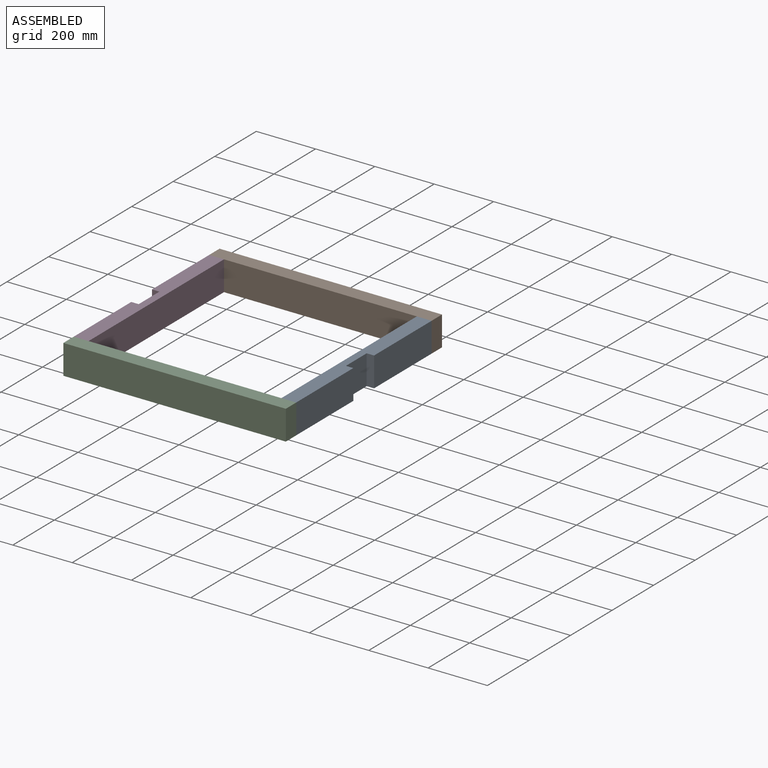
[diagram: assembled view]
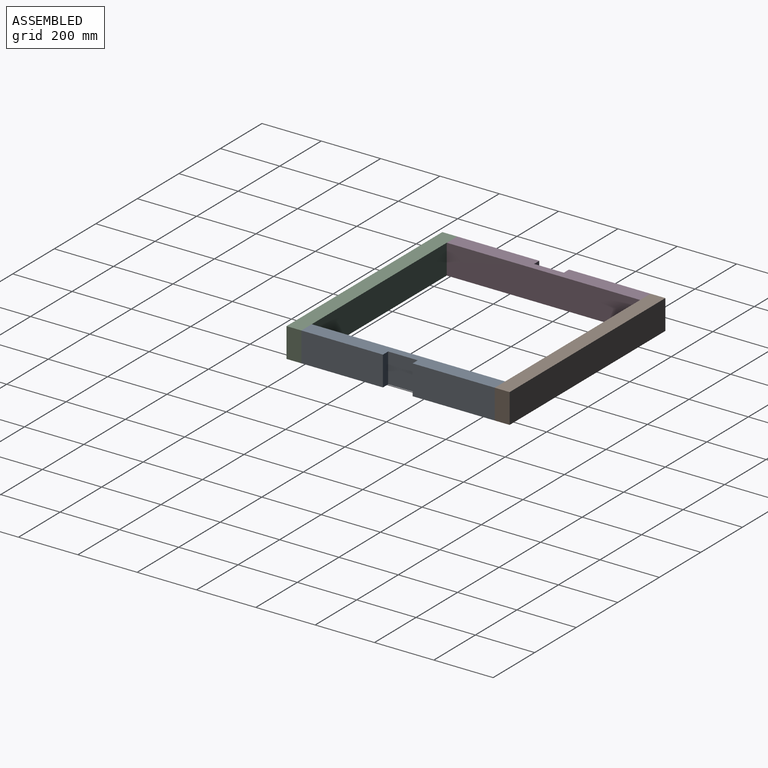
[diagram: assembled view, second angle]
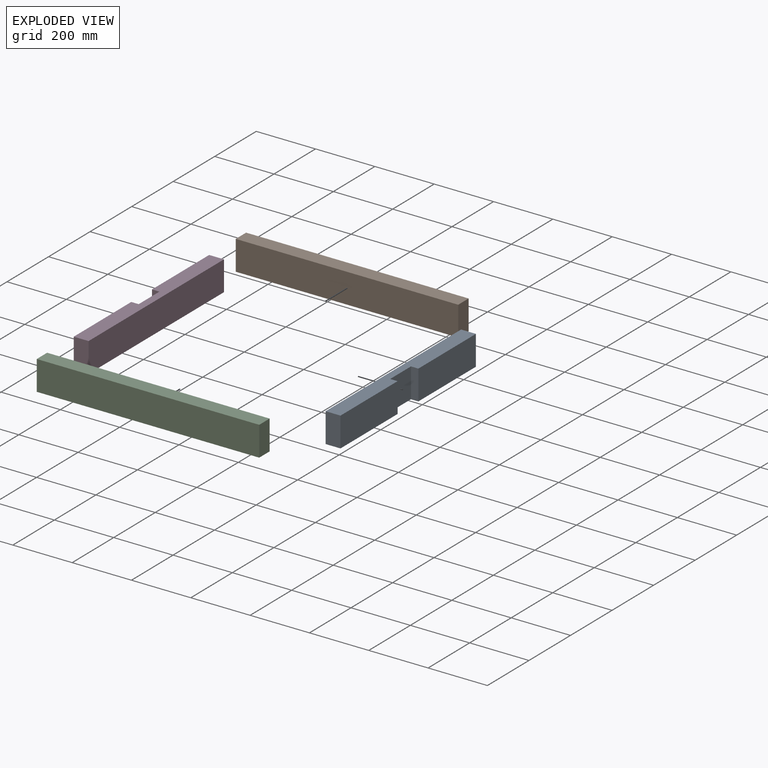
[diagram: exploded view]
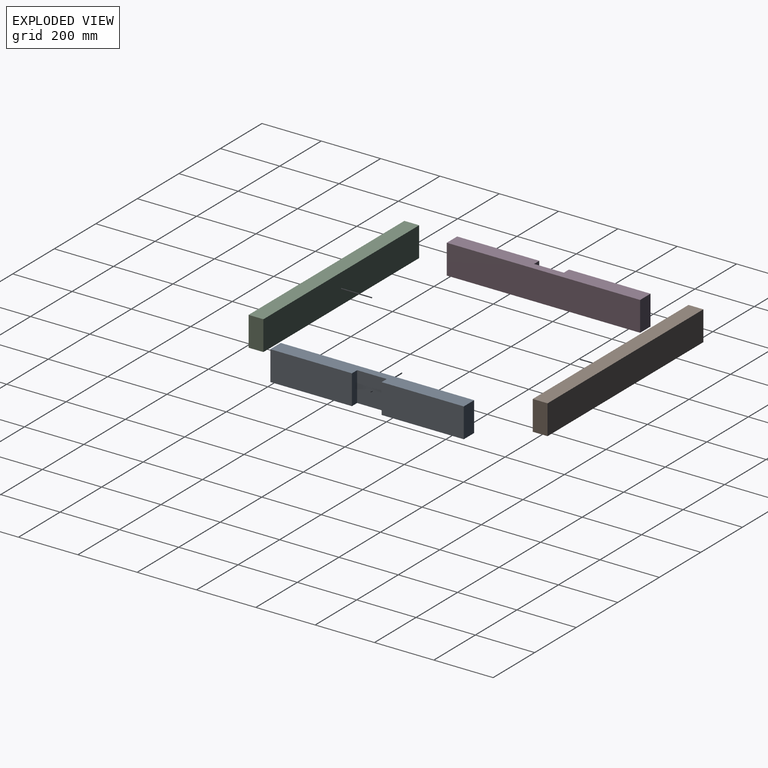
[diagram: exploded view, second angle]
ASSEMBLY  parts=4 mates=3
PART A: 10 faces, bbox 50x652x100 mm
  f0: plane 275x100mm, normal (1,0,0), area 27500mm2, adj f1,f3,f5,f8
  f1: plane 652x50mm, normal (0,0,1), area 30100mm2, adj f0,f2,f4,f5,f6,f7,f8,f9
  f2: plane 652x100mm, normal (-1,0,0), area 65200mm2, adj f1,f3,f5,f6
  f3: plane 652x50mm, normal (0,0,-1), area 30100mm2, adj f0,f2,f4,f5,f6,f7,f8,f9
  f4: plane 277x100mm, normal (1,0,0), area 27700mm2, adj f1,f3,f6,f7
  f5: plane 100x50mm, normal (0,-1,0), area 5000mm2, adj f0,f1,f2,f3
  f6: plane 100x50mm, normal (0,1,0), area 5000mm2, adj f1,f2,f3,f4
  f7: plane 100x25mm, normal (0,-1,0), area 2500mm2, adj f1,f3,f4,f9
  f8: plane 100x25mm, normal (0,1,0), area 2500mm2, adj f0,f1,f3,f9
  f9: plane 100x100mm, normal (1,0,0), area 10000mm2, adj f1,f3,f7,f8
PART B: 6 faces, bbox 50x750x100 mm
  f0: plane 750x50mm, normal (0,0,1), area 37500mm2, adj f1,f3,f4,f5
  f1: plane 750x100mm, normal (-1,0,0), area 75000mm2, adj f0,f2,f4,f5
  f2: plane 750x50mm, normal (0,0,-1), area 37500mm2, adj f1,f3,f4,f5
  f3: plane 750x100mm, normal (1,0,0), area 75000mm2, adj f0,f2,f4,f5
  f4: plane 100x50mm, normal (0,-1,0), area 5000mm2, adj f0,f1,f2,f3
  f5: plane 100x50mm, normal (0,1,0), area 5000mm2, adj f0,f1,f2,f3
PART C: same geometry as B
PART D: same geometry as A
PLACE A t=(399.59,60.01,-269.15)mm fixed
PLACE B rot(axis=(0,0,1),90deg) t=(-300.41,60.01,-269.15)mm
PLACE C rot(axis=(0,0,1),90deg) t=(-300.41,-641.99,-269.15)mm
PLACE D rot(axis=(0,0,1),180deg) t=(-250.41,-591.99,-269.15)mm
MATE fastened B.f1 <-> D.f5  axis (0,-1,0) through (-300.41,60.01,-219.15)mm
MATE fastened C.f5 <-> D.f4  axis (-1,0,0) through (-300.41,-591.99,-219.15)mm
MATE fastened B.f4 <-> A.f4  axis (1,0,0) through (449.59,60.01,-219.15)mm
